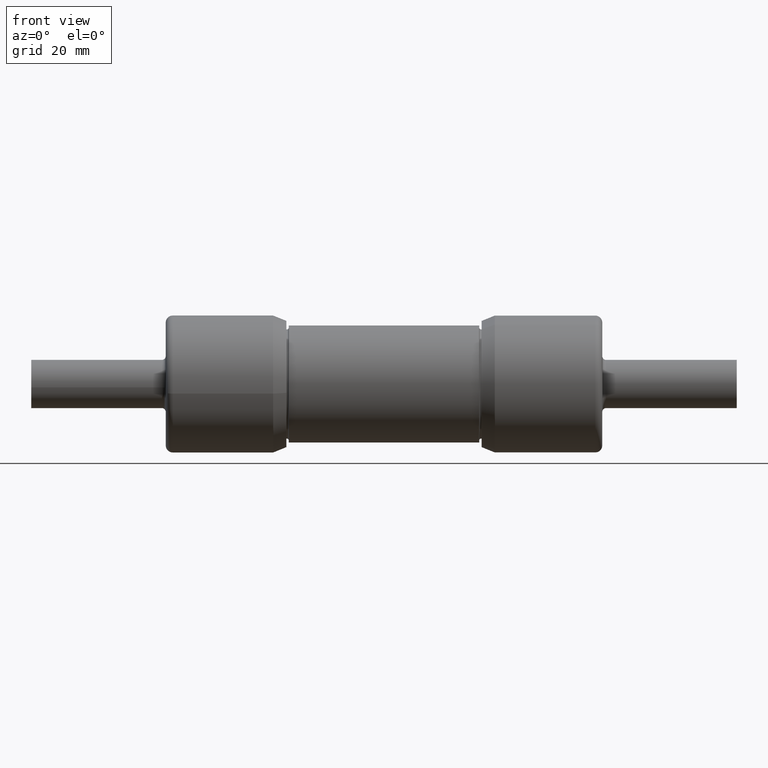
[diagram: clean part render]
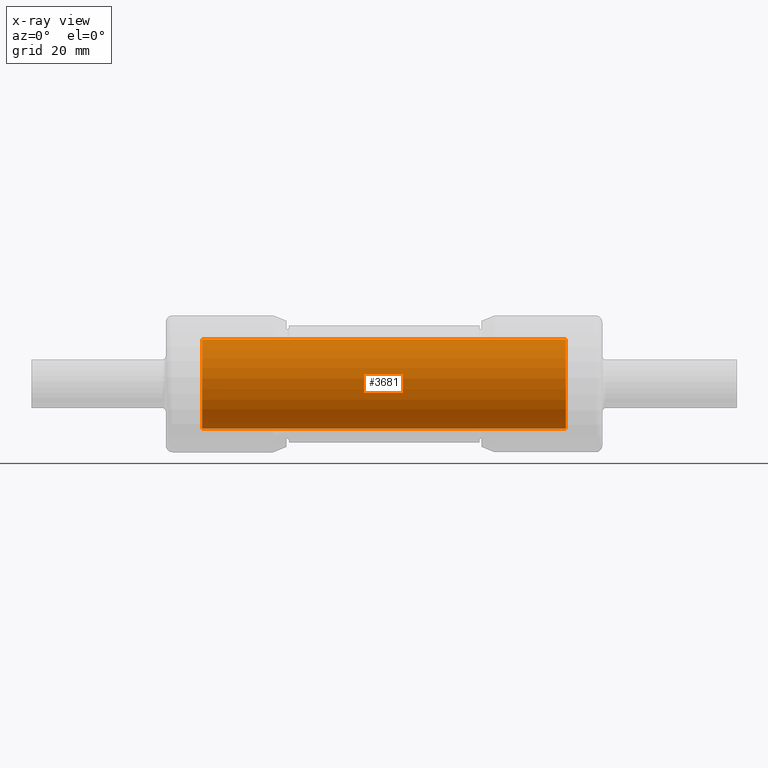
[diagram: x-ray — body ghosted, one internal face saturated and labeled with its STEP entity id]
A machine part, front view, then the same camera in x-ray: the body is ghosted and one INTERNAL B-rep face — a face not visible from any outside direction — is saturated and labeled: STEP entity #3681.
In plain terms, the highlighted cylindrical surface (partial cylindrical patch) has radius 7.3406 mm, axis along (-1, -0, -0).
Its self-contained STEP definition (entity closure, byte-faithful):
#24 = CARTESIAN_POINT ( 'NONE',  ( 2.353000000000000203, 0.000000000000000000, 0.000000000000000000 ) ) ;
#44 = CIRCLE ( 'NONE', #625, 0.2889999999999996461 ) ;
#585 = EDGE_LOOP ( 'NONE', ( #6150, #3081, #3750, #5747 ) ) ;
#625 = AXIS2_PLACEMENT_3D ( 'NONE', #24, #3840, #5635 ) ;
#687 = EDGE_CURVE ( 'NONE', #1047, #2572, #5683, .T. ) ;
#885 = CARTESIAN_POINT ( 'NONE',  ( 2.353000000000000203, 3.539229249535847246E-17, -0.2889999999999997016 ) ) ;
#925 = VERTEX_POINT ( 'NONE', #1168 ) ;
#965 = CYLINDRICAL_SURFACE ( 'NONE', #2411, 0.2889999999999996461 ) ;
#998 = DIRECTION ( 'NONE',  ( -1.000000000000000000, -0.000000000000000000, -0.000000000000000000 ) ) ;
#1047 = VERTEX_POINT ( 'NONE', #885 ) ;
#1089 = CARTESIAN_POINT ( 'NONE',  ( -3.791200677927629740E-33, 0.000000000000000000, 0.2889999999999996461 ) ) ;
#1168 = CARTESIAN_POINT ( 'NONE',  ( 2.353000000000000203, 0.000000000000000000, 0.2889999999999996461 ) ) ;
#1373 = VECTOR ( 'NONE', #6808, 39.37007874015748143 ) ;
#1397 = CARTESIAN_POINT ( 'NONE',  ( -3.791200677927629740E-33, 0.000000000000000000, 0.000000000000000000 ) ) ;
#1469 = CARTESIAN_POINT ( 'NONE',  ( -3.791200677927629740E-33, 3.539229249535846630E-17, -0.2889999999999996461 ) ) ;
#1499 = DIRECTION ( 'NONE',  ( 0.000000000000000000, 0.000000000000000000, 1.000000000000000000 ) ) ;
#1668 = LINE ( 'NONE', #5465, #7041 ) ;
#1839 = CARTESIAN_POINT ( 'NONE',  ( 0.000000000000000000, 3.539229249535846630E-17, -0.2889999999999996461 ) ) ;
#1953 = DIRECTION ( 'NONE',  ( 0.000000000000000000, 0.000000000000000000, 1.000000000000000000 ) ) ;
#2133 = FACE_OUTER_BOUND ( 'NONE', #585, .T. ) ;
#2404 = EDGE_CURVE ( 'NONE', #2572, #4253, #3067, .T. ) ;
#2411 = AXIS2_PLACEMENT_3D ( 'NONE', #4386, #998, #1499 ) ;
#2572 = VERTEX_POINT ( 'NONE', #1469 ) ;
#3017 = DIRECTION ( 'NONE',  ( -1.000000000000000000, -0.000000000000000000, -0.000000000000000000 ) ) ;
#3067 = CIRCLE ( 'NONE', #5032, 0.2889999999999996461 ) ;
#3081 = ORIENTED_EDGE ( 'NONE', *, *, #687, .T. ) ;
#3681 = ADVANCED_FACE ( 'NONE', ( #2133 ), #965, .F. ) ;
#3750 = ORIENTED_EDGE ( 'NONE', *, *, #2404, .T. ) ;
#3840 = DIRECTION ( 'NONE',  ( -1.000000000000000000, -0.000000000000000000, -0.000000000000000000 ) ) ;
#4253 = VERTEX_POINT ( 'NONE', #1089 ) ;
#4259 = EDGE_CURVE ( 'NONE', #925, #4253, #1668, .T. ) ;
#4386 = CARTESIAN_POINT ( 'NONE',  ( 0.000000000000000000, 0.000000000000000000, 0.000000000000000000 ) ) ;
#5008 = EDGE_CURVE ( 'NONE', #1047, #925, #44, .T. ) ;
#5032 = AXIS2_PLACEMENT_3D ( 'NONE', #1397, #3017, #1953 ) ;
#5465 = CARTESIAN_POINT ( 'NONE',  ( 0.000000000000000000, 0.000000000000000000, 0.2889999999999996461 ) ) ;
#5503 = DIRECTION ( 'NONE',  ( -1.000000000000000000, -0.000000000000000000, -0.000000000000000000 ) ) ;
#5635 = DIRECTION ( 'NONE',  ( 0.000000000000000000, 0.000000000000000000, 1.000000000000000000 ) ) ;
#5683 = LINE ( 'NONE', #1839, #1373 ) ;
#5747 = ORIENTED_EDGE ( 'NONE', *, *, #4259, .F. ) ;
#6150 = ORIENTED_EDGE ( 'NONE', *, *, #5008, .F. ) ;
#6808 = DIRECTION ( 'NONE',  ( -1.000000000000000000, -0.000000000000000000, -0.000000000000000000 ) ) ;
#7041 = VECTOR ( 'NONE', #5503, 39.37007874015748143 ) ;